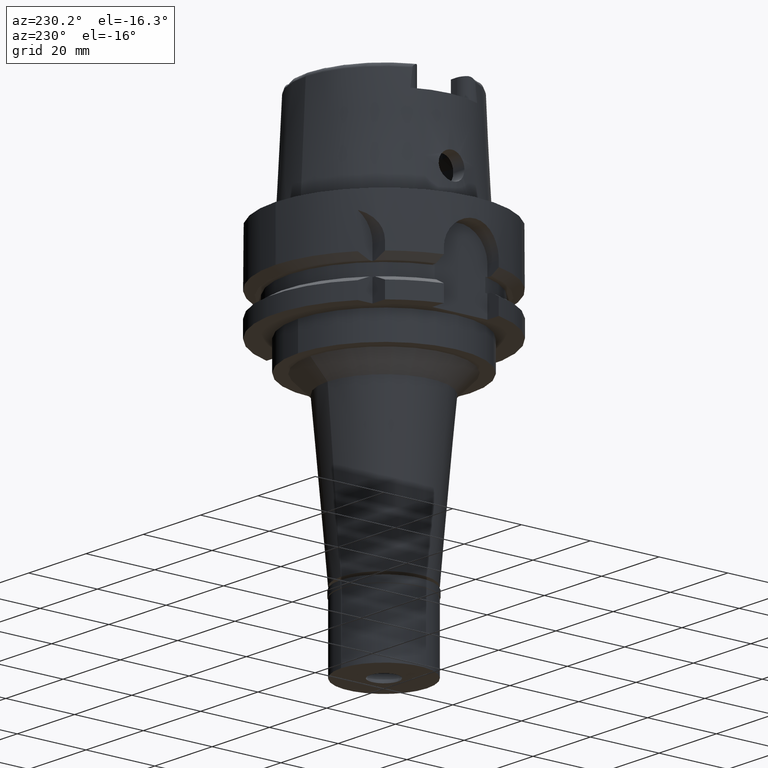
[diagram: clean part render]
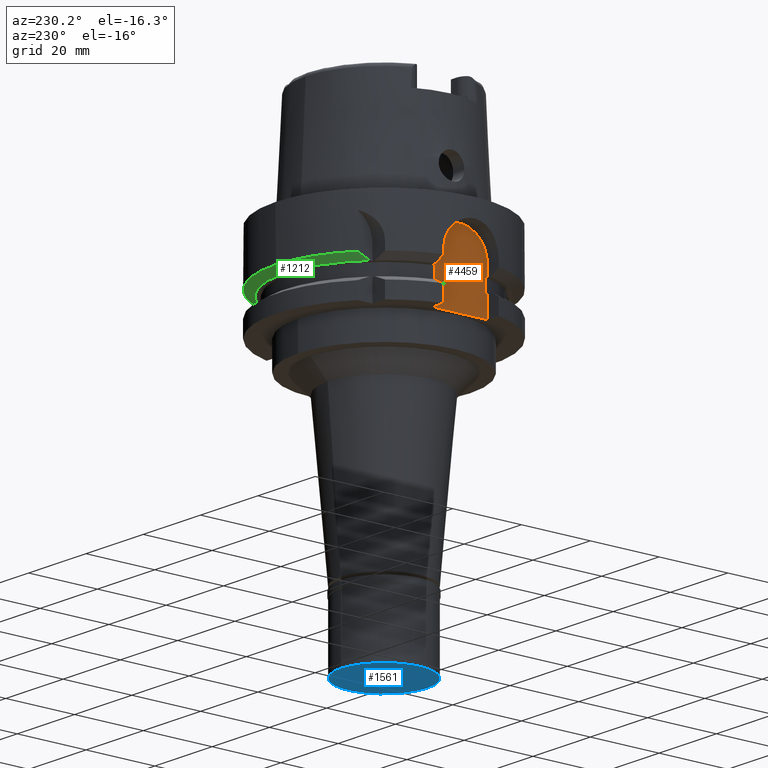
[diagram: same view with three faces highlighted in distinct colors, each labeled with its STEP entity id]
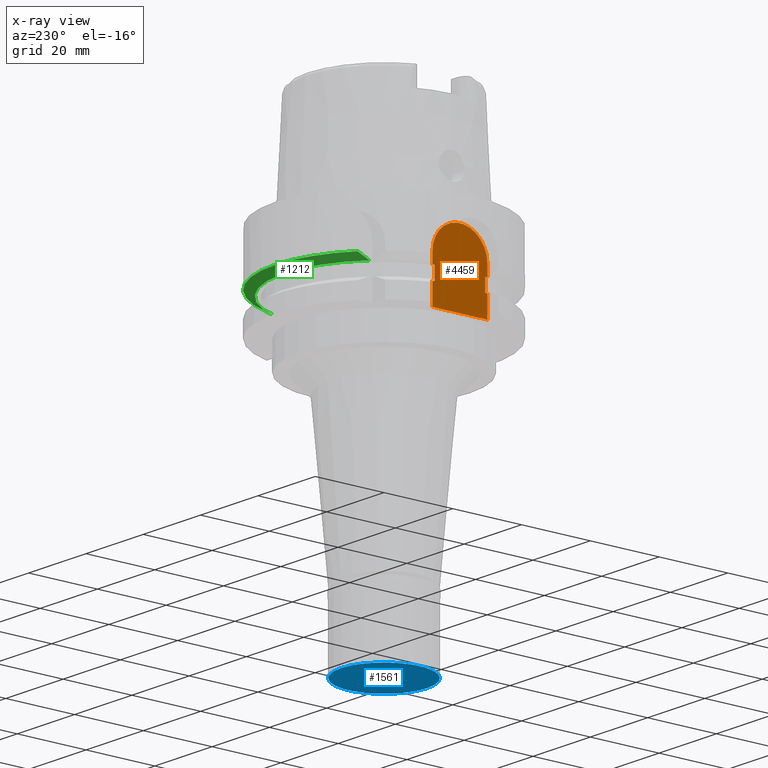
[diagram: x-ray of the same camera — body ghosted, the three highlighted faces saturated]
A machine part, auxiliary view with three faces highlighted in distinct colors.
The next image is the same camera in x-ray (body ghosted, the three faces saturated) — at least one of them is partly hidden behind the body in this view.
Their STEP definitions:

[orange] entity #4459 — the highlighted planar face has unit normal (1, 0, 0).
#13 = ORIENTED_EDGE ( 'NONE', *, *, #1030, .T. ) ;
#41 = LINE ( 'NONE', #4261, #2705 ) ;
#69 = EDGE_CURVE ( 'NONE', #711, #5066, #41, .T. ) ;
#86 = VERTEX_POINT ( 'NONE', #3037 ) ;
#218 = DIRECTION ( 'NONE',  ( 0.0000000000000000000, 0.0000000000000000000, -1.000000000000000000 ) ) ;
#275 = EDGE_CURVE ( 'NONE', #1760, #1404, #1486, .T. ) ;
#368 = PLANE ( 'NONE',  #4421 ) ;
#565 = VERTEX_POINT ( 'NONE', #3669 ) ;
#575 = EDGE_CURVE ( 'NONE', #565, #86, #5380, .T. ) ;
#578 = ORIENTED_EDGE ( 'NONE', *, *, #575, .F. ) ;
#579 = CIRCLE ( 'NONE', #2706, 8.000000000000000000 ) ;
#711 = VERTEX_POINT ( 'NONE', #2689 ) ;
#728 = ORIENTED_EDGE ( 'NONE', *, *, #4501, .T. ) ;
#773 = DIRECTION ( 'NONE',  ( 5.998158823386000371E-14, 1.000000000000000000, 0.0000000000000000000 ) ) ;
#801 = VERTEX_POINT ( 'NONE', #944 ) ;
#819 = FACE_OUTER_BOUND ( 'NONE', #4094, .T. ) ;
#833 = DIRECTION ( 'NONE',  ( -5.998158823386000371E-14, 1.000000000000000000, 0.0000000000000000000 ) ) ;
#888 = VECTOR ( 'NONE', #3711, 1000.000000000000000 ) ;
#944 = CARTESIAN_POINT ( 'NONE',  ( -26.50000000000000000, 7.348469228349999938, -19.87500000000000000 ) ) ;
#948 = CARTESIAN_POINT ( 'NONE',  ( -26.50000000000000000, 8.000000000000000000, -13.00000000000000000 ) ) ;
#1030 = EDGE_CURVE ( 'NONE', #5066, #3223, #4863, .T. ) ;
#1085 = CARTESIAN_POINT ( 'NONE',  ( -26.50000000000000000, -8.000000000000000000, -19.87500000000000000 ) ) ;
#1159 = VECTOR ( 'NONE', #218, 1000.000000000000000 ) ;
#1193 = LINE ( 'NONE', #5022, #3807 ) ;
#1292 = VERTEX_POINT ( 'NONE', #4403 ) ;
#1307 = LINE ( 'NONE', #1683, #2840 ) ;
#1311 = DIRECTION ( 'NONE',  ( 0.0000000000000000000, 1.000000000000000000, 0.0000000000000000000 ) ) ;
#1394 = LINE ( 'NONE', #948, #1159 ) ;
#1404 = VERTEX_POINT ( 'NONE', #4059 ) ;
#1434 = LINE ( 'NONE', #4811, #1905 ) ;
#1476 = ORIENTED_EDGE ( 'NONE', *, *, #275, .T. ) ;
#1485 = CARTESIAN_POINT ( 'NONE',  ( -26.50000000000000000, -8.000000000000000000, -19.87500000000000000 ) ) ;
#1486 = LINE ( 'NONE', #1925, #3505 ) ;
#1487 = DIRECTION ( 'NONE',  ( -5.998158823386000371E-14, 1.000000000000000000, 0.0000000000000000000 ) ) ;
#1644 = CARTESIAN_POINT ( 'NONE',  ( -26.50000000000000000, 8.000000000000000000, -13.00000000000000000 ) ) ;
#1683 = CARTESIAN_POINT ( 'NONE',  ( -26.50000000000000000, -8.000000000000000000, -16.12500000000000000 ) ) ;
#1760 = VERTEX_POINT ( 'NONE', #3582 ) ;
#1771 = VERTEX_POINT ( 'NONE', #3083 ) ;
#1905 = VECTOR ( 'NONE', #3905, 1000.000000000000000 ) ;
#1916 = CARTESIAN_POINT ( 'NONE',  ( -26.50000000000000000, -8.000000000000000000, -26.00000000000000000 ) ) ;
#1925 = CARTESIAN_POINT ( 'NONE',  ( -26.50000000000000000, -8.000000000000000000, -16.12500000000000000 ) ) ;
#1945 = VECTOR ( 'NONE', #4765, 1000.000000000000000 ) ;
#1985 = CARTESIAN_POINT ( 'NONE',  ( -26.50000000000000000, 7.348469228349999938, -19.87500000000000000 ) ) ;
#1994 = CARTESIAN_POINT ( 'NONE',  ( -26.50000000000000000, 8.000000000000000000, -19.87500000000000000 ) ) ;
#2310 = ORIENTED_EDGE ( 'NONE', *, *, #2759, .T. ) ;
#2477 = CARTESIAN_POINT ( 'NONE',  ( -26.50000000000000000, 0.0000000000000000000, 0.0000000000000000000 ) ) ;
#2534 = DIRECTION ( 'NONE',  ( 0.0000000000000000000, 1.000000000000000000, 0.0000000000000000000 ) ) ;
#2561 = DIRECTION ( 'NONE',  ( 1.000000000000000000, 0.0000000000000000000, 0.0000000000000000000 ) ) ;
#2579 = EDGE_CURVE ( 'NONE', #4845, #1404, #579, .T. ) ;
#2627 = DIRECTION ( 'NONE',  ( 0.0000000000000000000, 0.0000000000000000000, 1.000000000000000000 ) ) ;
#2689 = CARTESIAN_POINT ( 'NONE',  ( -26.50000000000000000, -8.000000000000000000, -26.00000000000000000 ) ) ;
#2705 = VECTOR ( 'NONE', #2627, 1000.000000000000000 ) ;
#2706 = AXIS2_PLACEMENT_3D ( 'NONE', #5101, #4647, #1311 ) ;
#2715 = VECTOR ( 'NONE', #833, 1000.000000000000000 ) ;
#2759 = EDGE_CURVE ( 'NONE', #565, #801, #1434, .T. ) ;
#2771 = DIRECTION ( 'NONE',  ( 5.998158823386000371E-14, 1.000000000000000000, 0.0000000000000000000 ) ) ;
#2840 = VECTOR ( 'NONE', #773, 1000.000000000000000 ) ;
#3037 = CARTESIAN_POINT ( 'NONE',  ( -26.50000000000000000, 8.000000000000000000, -16.12500000000000000 ) ) ;
#3056 = EDGE_CURVE ( 'NONE', #801, #1292, #4091, .T. ) ;
#3083 = CARTESIAN_POINT ( 'NONE',  ( -26.50000000000000000, -7.348469228349999938, -16.12500000000000000 ) ) ;
#3223 = VERTEX_POINT ( 'NONE', #4790 ) ;
#3227 = EDGE_CURVE ( 'NONE', #4845, #86, #1394, .T. ) ;
#3244 = LINE ( 'NONE', #1994, #888 ) ;
#3257 = EDGE_CURVE ( 'NONE', #711, #3732, #4380, .T. ) ;
#3354 = ORIENTED_EDGE ( 'NONE', *, *, #4005, .T. ) ;
#3411 = CARTESIAN_POINT ( 'NONE',  ( -26.50000000000000000, 8.000000000000000000, -26.00000000000000000 ) ) ;
#3505 = VECTOR ( 'NONE', #4368, 1000.000000000000000 ) ;
#3560 = VECTOR ( 'NONE', #2771, 1000.000000000000000 ) ;
#3582 = CARTESIAN_POINT ( 'NONE',  ( -26.50000000000000000, -8.000000000000000000, -16.12500000000000000 ) ) ;
#3669 = CARTESIAN_POINT ( 'NONE',  ( -26.50000000000000000, 7.348469228349999938, -16.12500000000000000 ) ) ;
#3711 = DIRECTION ( 'NONE',  ( 0.0000000000000000000, 0.0000000000000000000, -1.000000000000000000 ) ) ;
#3732 = VERTEX_POINT ( 'NONE', #3411 ) ;
#3767 = ORIENTED_EDGE ( 'NONE', *, *, #4180, .F. ) ;
#3807 = VECTOR ( 'NONE', #4558, 1000.000000000000000 ) ;
#3896 = ORIENTED_EDGE ( 'NONE', *, *, #2579, .F. ) ;
#3905 = DIRECTION ( 'NONE',  ( 0.0000000000000000000, 0.0000000000000000000, -1.000000000000000000 ) ) ;
#4005 = EDGE_CURVE ( 'NONE', #1292, #3732, #3244, .T. ) ;
#4059 = CARTESIAN_POINT ( 'NONE',  ( -26.50000000000000000, -8.000000000000000000, -13.00000000000000000 ) ) ;
#4091 = LINE ( 'NONE', #1985, #4550 ) ;
#4094 = EDGE_LOOP ( 'NONE', ( #5031, #13, #728, #3767, #1476, #3896, #4542, #578, #2310, #5409, #3354, #4225 ) ) ;
#4180 = EDGE_CURVE ( 'NONE', #1760, #1771, #1307, .T. ) ;
#4225 = ORIENTED_EDGE ( 'NONE', *, *, #3257, .F. ) ;
#4261 = CARTESIAN_POINT ( 'NONE',  ( -26.50000000000000000, -8.000000000000000000, -26.00000000000000000 ) ) ;
#4368 = DIRECTION ( 'NONE',  ( 0.0000000000000000000, 0.0000000000000000000, 1.000000000000000000 ) ) ;
#4380 = LINE ( 'NONE', #1916, #1945 ) ;
#4403 = CARTESIAN_POINT ( 'NONE',  ( -26.50000000000000000, 8.000000000000000000, -19.87500000000000000 ) ) ;
#4421 = AXIS2_PLACEMENT_3D ( 'NONE', #2477, #2561, #2534 ) ;
#4459 = ADVANCED_FACE ( 'NONE', ( #819 ), #368, .F. ) ;
#4501 = EDGE_CURVE ( 'NONE', #3223, #1771, #1193, .T. ) ;
#4542 = ORIENTED_EDGE ( 'NONE', *, *, #3227, .T. ) ;
#4550 = VECTOR ( 'NONE', #1487, 1000.000000000000000 ) ;
#4558 = DIRECTION ( 'NONE',  ( 0.0000000000000000000, 0.0000000000000000000, 1.000000000000000000 ) ) ;
#4647 = DIRECTION ( 'NONE',  ( 1.000000000000000000, 0.0000000000000000000, 0.0000000000000000000 ) ) ;
#4765 = DIRECTION ( 'NONE',  ( 0.0000000000000000000, 1.000000000000000000, 0.0000000000000000000 ) ) ;
#4790 = CARTESIAN_POINT ( 'NONE',  ( -26.50000000000000000, -7.348469228349999938, -19.87500000000000000 ) ) ;
#4811 = CARTESIAN_POINT ( 'NONE',  ( -26.50000000000000000, 7.348469228349999938, -16.12500000000000000 ) ) ;
#4845 = VERTEX_POINT ( 'NONE', #1644 ) ;
#4863 = LINE ( 'NONE', #1085, #3560 ) ;
#4905 = CARTESIAN_POINT ( 'NONE',  ( -26.50000000000000000, 7.348469228349999938, -16.12500000000000000 ) ) ;
#5022 = CARTESIAN_POINT ( 'NONE',  ( -26.50000000000000000, -7.348469228349999938, -19.87500000000000000 ) ) ;
#5031 = ORIENTED_EDGE ( 'NONE', *, *, #69, .T. ) ;
#5066 = VERTEX_POINT ( 'NONE', #1485 ) ;
#5101 = CARTESIAN_POINT ( 'NONE',  ( -26.50000000000000000, 0.0000000000000000000, -13.00000000000000000 ) ) ;
#5380 = LINE ( 'NONE', #4905, #2715 ) ;
#5409 = ORIENTED_EDGE ( 'NONE', *, *, #3056, .T. ) ;

[blue] entity #1561 — the highlighted planar face has unit normal (0, 0, -1).
#31 = DIRECTION ( 'NONE',  ( 0.0000000000000000000, -1.000000000000000000, 0.0000000000000000000 ) ) ;
#142 = EDGE_CURVE ( 'NONE', #1686, #322, #5360, .T. ) ;
#181 = AXIS2_PLACEMENT_3D ( 'NONE', #3676, #1103, #337 ) ;
#322 = VERTEX_POINT ( 'NONE', #626 ) ;
#337 = DIRECTION ( 'NONE',  ( 0.0000000000000000000, 1.000000000000000000, 0.0000000000000000000 ) ) ;
#394 = FACE_BOUND ( 'NONE', #5032, .T. ) ;
#510 = DIRECTION ( 'NONE',  ( 0.0000000000000000000, 0.0000000000000000000, 1.000000000000000000 ) ) ;
#626 = CARTESIAN_POINT ( 'NONE',  ( 0.0000000000000000000, -12.50000000000000000, -20.50000000000000000 ) ) ;
#742 = VERTEX_POINT ( 'NONE', #5184 ) ;
#921 = DIRECTION ( 'NONE',  ( 0.0000000000000000000, -1.000000000000000000, 0.0000000000000000000 ) ) ;
#934 = DIRECTION ( 'NONE',  ( 0.0000000000000000000, 1.000000000000000000, 0.0000000000000000000 ) ) ;
#1103 = DIRECTION ( 'NONE',  ( 0.0000000000000000000, 0.0000000000000000000, -1.000000000000000000 ) ) ;
#1431 = CARTESIAN_POINT ( 'NONE',  ( 0.0000000000000000000, 0.0000000000000000000, -20.50000000000000000 ) ) ;
#1561 = ADVANCED_FACE ( 'NONE', ( #2950, #394 ), #2978, .T. ) ;
#1686 = VERTEX_POINT ( 'NONE', #3059 ) ;
#1761 = CARTESIAN_POINT ( 'NONE',  ( 0.0000000000000000000, 0.0000000000000000000, -20.50000000000000000 ) ) ;
#2163 = VERTEX_POINT ( 'NONE', #2524 ) ;
#2442 = CARTESIAN_POINT ( 'NONE',  ( 0.0000000000000000000, 0.0000000000000000000, -20.50000000000000000 ) ) ;
#2476 = AXIS2_PLACEMENT_3D ( 'NONE', #1431, #3125, #3013 ) ;
#2524 = CARTESIAN_POINT ( 'NONE',  ( 0.0000000000000000000, 4.050000000000999911, -20.50000000000000000 ) ) ;
#2950 = FACE_OUTER_BOUND ( 'NONE', #3311, .T. ) ;
#2978 = PLANE ( 'NONE',  #4286 ) ;
#3013 = DIRECTION ( 'NONE',  ( 0.0000000000000000000, -1.000000000000000000, 0.0000000000000000000 ) ) ;
#3059 = CARTESIAN_POINT ( 'NONE',  ( 0.0000000000000000000, 12.50000000000000000, -20.50000000000000000 ) ) ;
#3106 = CIRCLE ( 'NONE', #5405, 4.050000000000999911 ) ;
#3125 = DIRECTION ( 'NONE',  ( 0.0000000000000000000, 0.0000000000000000000, 1.000000000000000000 ) ) ;
#3248 = ORIENTED_EDGE ( 'NONE', *, *, #4342, .F. ) ;
#3311 = EDGE_LOOP ( 'NONE', ( #4701, #3248 ) ) ;
#3587 = AXIS2_PLACEMENT_3D ( 'NONE', #1761, #510, #934 ) ;
#3676 = CARTESIAN_POINT ( 'NONE',  ( 0.0000000000000000000, 0.0000000000000000000, -20.50000000000000000 ) ) ;
#4286 = AXIS2_PLACEMENT_3D ( 'NONE', #4714, #4681, #31 ) ;
#4342 = EDGE_CURVE ( 'NONE', #322, #1686, #5039, .T. ) ;
#4681 = DIRECTION ( 'NONE',  ( 0.0000000000000000000, 0.0000000000000000000, -1.000000000000000000 ) ) ;
#4694 = CIRCLE ( 'NONE', #181, 4.050000000000999911 ) ;
#4701 = ORIENTED_EDGE ( 'NONE', *, *, #142, .F. ) ;
#4709 = DIRECTION ( 'NONE',  ( 0.0000000000000000000, 0.0000000000000000000, -1.000000000000000000 ) ) ;
#4714 = CARTESIAN_POINT ( 'NONE',  ( 0.0000000000000000000, 0.0000000000000000000, -20.50000000000000000 ) ) ;
#4909 = EDGE_CURVE ( 'NONE', #742, #2163, #3106, .T. ) ;
#4979 = ORIENTED_EDGE ( 'NONE', *, *, #4909, .F. ) ;
#5032 = EDGE_LOOP ( 'NONE', ( #5124, #4979 ) ) ;
#5039 = CIRCLE ( 'NONE', #2476, 12.50000000000000000 ) ;
#5052 = EDGE_CURVE ( 'NONE', #2163, #742, #4694, .T. ) ;
#5124 = ORIENTED_EDGE ( 'NONE', *, *, #5052, .F. ) ;
#5184 = CARTESIAN_POINT ( 'NONE',  ( 0.0000000000000000000, -4.050000000000999911, -20.50000000000000000 ) ) ;
#5360 = CIRCLE ( 'NONE', #3587, 12.50000000000000000 ) ;
#5405 = AXIS2_PLACEMENT_3D ( 'NONE', #2442, #4709, #921 ) ;

[green] entity #1212 — the highlighted conical surface has half-angle 60 deg.
#200 = CARTESIAN_POINT ( 'NONE',  ( 30.18691748978999811, 9.000000692495998322, -14.62249534000999951 ) ) ;
#215 = AXIS2_PLACEMENT_3D ( 'NONE', #1808, #3495, #4539 ) ;
#245 = DIRECTION ( 'NONE',  ( 0.0000000000000000000, 1.000000000000000000, 0.0000000000000000000 ) ) ;
#312 = EDGE_CURVE ( 'NONE', #2441, #5233, #5006, .T. ) ;
#465 = ORIENTED_EDGE ( 'NONE', *, *, #2577, .T. ) ;
#555 = EDGE_LOOP ( 'NONE', ( #2251, #855, #2964, #4515, #465 ) ) ;
#634 = CARTESIAN_POINT ( 'NONE',  ( 0.0000000000000000000, 0.0000000000000000000, -14.62250092523999889 ) ) ;
#666 = CIRCLE ( 'NONE', #4635, 28.89759526419000224 ) ;
#855 = ORIENTED_EDGE ( 'NONE', *, *, #881, .F. ) ;
#881 = EDGE_CURVE ( 'NONE', #5233, #3273, #3652, .T. ) ;
#1077 = CARTESIAN_POINT ( 'NONE',  ( 28.35167289540000368, 8.999999992174000596, -15.63548323468000056 ) ) ;
#1104 = CARTESIAN_POINT ( 'NONE',  ( 27.46035048403000189, 9.000000214624998662, -16.12500000000000000 ) ) ;
#1180 = CARTESIAN_POINT ( 'NONE',  ( 0.0000000000000000000, 0.0000000000000000000, -16.12500000000000000 ) ) ;
#1212 = ADVANCED_FACE ( 'NONE', ( #3186 ), #5164, .T. ) ;
#1220 = CARTESIAN_POINT ( 'NONE',  ( 30.18691748978999811, 9.000000692495998322, -14.62249534000999951 ) ) ;
#1464 = DIRECTION ( 'NONE',  ( 0.9583148474999051425, 0.2857142857143015191, 0.0000000000000000000 ) ) ;
#1550 = CARTESIAN_POINT ( 'NONE',  ( 0.0000000000000000000, 0.0000000000000000000, -15.37375046262000033 ) ) ;
#1612 = AXIS2_PLACEMENT_3D ( 'NONE', #634, #3181, #1464 ) ;
#1776 = CARTESIAN_POINT ( 'NONE',  ( -20.00000400335999728, 20.85831984813000162, -16.12500000000000000 ) ) ;
#1808 = CARTESIAN_POINT ( 'NONE',  ( 0.0000000000000000000, 0.0000000000000000000, -14.62250092523999889 ) ) ;
#1937 = CARTESIAN_POINT ( 'NONE',  ( 27.46035048403000189, 9.000000214624998662, -16.12500000000000000 ) ) ;
#1967 = EDGE_CURVE ( 'NONE', #2441, #2384, #666, .T. ) ;
#2164 = CARTESIAN_POINT ( 'NONE',  ( -20.00000400335999728, 20.85831984813000162, -16.12500000000000000 ) ) ;
#2251 = ORIENTED_EDGE ( 'NONE', *, *, #2438, .F. ) ;
#2384 = VERTEX_POINT ( 'NONE', #1776 ) ;
#2438 = EDGE_CURVE ( 'NONE', #3273, #4134, #4125, .T. ) ;
#2441 = VERTEX_POINT ( 'NONE', #1937 ) ;
#2577 = EDGE_CURVE ( 'NONE', #2384, #4134, #3427, .T. ) ;
#2865 = DIRECTION ( 'NONE',  ( 0.0000000000000000000, 0.0000000000000000000, 1.000000000000000000 ) ) ;
#2964 = ORIENTED_EDGE ( 'NONE', *, *, #312, .F. ) ;
#3181 = DIRECTION ( 'NONE',  ( 0.0000000000000000000, 0.0000000000000000000, 1.000000000000000000 ) ) ;
#3186 = FACE_OUTER_BOUND ( 'NONE', #555, .T. ) ;
#3246 = DIRECTION ( 'NONE',  ( 0.0000000000000000000, 0.0000000000000000000, 1.000000000000000000 ) ) ;
#3273 = VERTEX_POINT ( 'NONE', #3964 ) ;
#3325 = CARTESIAN_POINT ( 'NONE',  ( -20.00001377493000021, 24.33617572673000140, -14.62245154170999939 ) ) ;
#3329 = CARTESIAN_POINT ( 'NONE',  ( -20.00000808210187841, 21.97726579126707236, -15.65871069883595368 ) ) ;
#3427 = B_SPLINE_CURVE_WITH_KNOTS ( 'NONE', 3,
 ( #2164, #3329, #4669, #5008 ),
 .UNSPECIFIED., .F., .F.,
 ( 4, 4 ),
 ( 0.0000000000000000000, 1.000000000000000000 ),
 .UNSPECIFIED. ) ;
#3495 = DIRECTION ( 'NONE',  ( 0.0000000000000000000, 0.0000000000000000000, 1.000000000000000000 ) ) ;
#3562 = CARTESIAN_POINT ( 'NONE',  ( 29.26051990759000176, 8.999999705451999787, -15.13463212110000100 ) ) ;
#3652 = CIRCLE ( 'NONE', #1612, 31.49999999999999645 ) ;
#3695 = DIRECTION ( 'NONE',  ( 0.0000000000000000000, 1.000000000000000000, 0.0000000000000000000 ) ) ;
#3925 = AXIS2_PLACEMENT_3D ( 'NONE', #1550, #3246, #245 ) ;
#3953 = CARTESIAN_POINT ( 'NONE',  ( 29.87643997380999750, 9.000000692495998322, -14.79427737201999982 ) ) ;
#3964 = CARTESIAN_POINT ( 'NONE',  ( 0.0000000000000000000, 31.50000000000000000, -14.62250092523999889 ) ) ;
#4035 = CARTESIAN_POINT ( 'NONE',  ( 27.75579379159999860, 9.000000214624998662, -15.96290935705999736 ) ) ;
#4125 = CIRCLE ( 'NONE', #215, 31.50000000000000000 ) ;
#4134 = VERTEX_POINT ( 'NONE', #3325 ) ;
#4515 = ORIENTED_EDGE ( 'NONE', *, *, #1967, .T. ) ;
#4539 = DIRECTION ( 'NONE',  ( 0.0000000000000000000, 1.000000000000000000, 0.0000000000000000000 ) ) ;
#4635 = AXIS2_PLACEMENT_3D ( 'NONE', #1180, #2865, #3695 ) ;
#4669 = CARTESIAN_POINT ( 'NONE',  ( -20.00002748883304093, 23.13591286296415817, -15.15787019954225556 ) ) ;
#5006 = B_SPLINE_CURVE_WITH_KNOTS ( 'NONE', 3,
 ( #1104, #4035, #1077, #3562, #3953, #200 ),
 .UNSPECIFIED., .F., .F.,
 ( 4, 1, 1, 4 ),
 ( 0.0000000000000000000, 0.3333333333333000081, 0.6666666666667000474, 1.000000000000000000 ),
 .UNSPECIFIED. ) ;
#5008 = CARTESIAN_POINT ( 'NONE',  ( -20.00001377493000021, 24.33617572673000140, -14.62245154170999939 ) ) ;
#5164 = CONICAL_SURFACE ( 'NONE', #3925, 30.19879763209999979, 1.047197551196400456 ) ;
#5233 = VERTEX_POINT ( 'NONE', #1220 ) ;